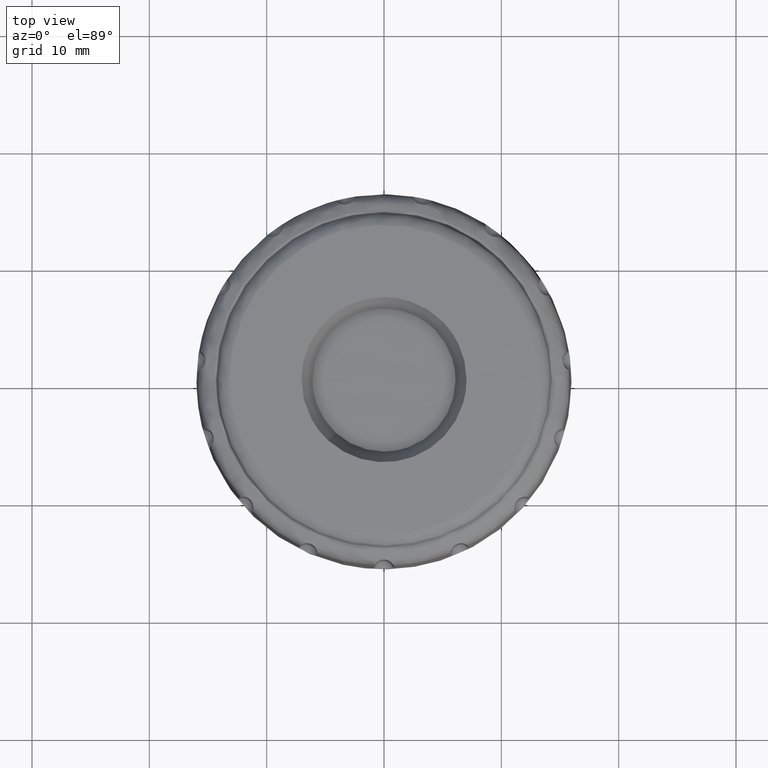
[diagram: clean part render]
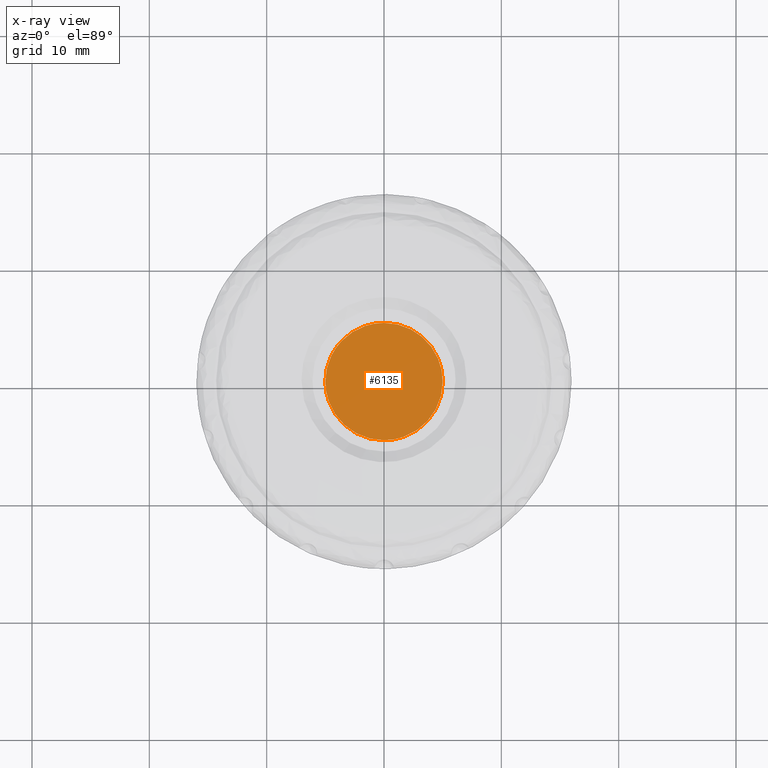
[diagram: x-ray — body ghosted, one internal face saturated and labeled with its STEP entity id]
A machine part, top view, then the same camera in x-ray: the body is ghosted and one INTERNAL B-rep face — a face not visible from any outside direction — is saturated and labeled: STEP entity #6135.
In plain terms, the highlighted face is a freeform B-spline surface patch.
Its self-contained STEP definition (entity closure, byte-faithful):
#774=CARTESIAN_POINT('',(3.228710281985366,3.817778332043557,8.000000000000082));
#775=VERTEX_POINT('',#774);
#776=CARTESIAN_POINT('',(5.0,0.0,8.0));
#777=VERTEX_POINT('',#776);
#778=CARTESIAN_POINT('',(3.228710281985366,3.817778332043557,8.000000000000082));
#779=CARTESIAN_POINT('',(3.539728782000803,3.554860782641227,8.000000000000084));
#780=CARTESIAN_POINT('',(4.019545652111504,3.036121859824177,8.000000000000021));
#781=CARTESIAN_POINT('',(4.472046225612244,2.274600815427267,8.000000000000089));
#782=CARTESIAN_POINT('',(4.763219410354973,1.573605996743177,7.999999999999933));
#783=CARTESIAN_POINT('',(4.951887044794971,0.848434915297570,8.000000000000208));
#784=CARTESIAN_POINT('',(5.000022349044431,0.282813379944158,7.999999999999936));
#785=CARTESIAN_POINT('',(5.0,0.0,8.0));
#786=B_SPLINE_CURVE_WITH_KNOTS('',3,(#778,#779,#780,#781,#782,#783,#784,#785),.UNSPECIFIED.,.F.,.U.,(4,1,1,1,1,4),(8.790038E-009,1.221755469266631,2.104137776077454,2.647132853785713,3.495577850451993,4.344016523720084),.UNSPECIFIED.);
#787=EDGE_CURVE('',#775,#777,#786,.T.);
#856=CARTESIAN_POINT('',(-3.626871746520105,3.441772775464737,7.999999999999372));
#857=VERTEX_POINT('',#856);
#863=CARTESIAN_POINT('',(-5.0,0.0,8.0));
#864=VERTEX_POINT('',#863);
#865=CARTESIAN_POINT('',(-5.0,0.0,8.0));
#866=CARTESIAN_POINT('',(-5.000110869077024,0.415212781525869,7.999999999999936));
#867=CARTESIAN_POINT('',(-4.923188867500707,1.028054158167918,7.999999999999806));
#868=CARTESIAN_POINT('',(-4.640609091061107,1.915031969057850,7.999999999999647));
#869=CARTESIAN_POINT('',(-4.259441488302971,2.679244564561157,7.999999999999545));
#870=CARTESIAN_POINT('',(-3.858271198310277,3.197994142557296,7.999999999999393));
#871=CARTESIAN_POINT('',(-3.626871746520105,3.441772775464737,7.999999999999372));
#872=B_SPLINE_CURVE_WITH_KNOTS('',3,(#865,#866,#867,#868,#869,#870,#871),.UNSPECIFIED.,.F.,.U.,(4,1,1,1,4),(1.769318E-009,1.245599826037694,1.838742561366745,2.787770716328274,3.796113323741247),.UNSPECIFIED.);
#873=EDGE_CURVE('',#864,#857,#872,.T.);
#875=CARTESIAN_POINT('',(-0.000000599366880,-4.999999999999965,8.0));
#876=VERTEX_POINT('',#875);
#877=CARTESIAN_POINT('',(-0.000000599366880,-4.999999999999965,8.0));
#878=CARTESIAN_POINT('',(-0.317023600388771,-5.000028079698827,8.000000000000004));
#879=CARTESIAN_POINT('',(-0.971516661249554,-4.937563823604807,8.0));
#880=CARTESIAN_POINT('',(-1.769004992644884,-4.698331893203535,8.000000000000021));
#881=CARTESIAN_POINT('',(-2.453033067753525,-4.372189057999847,7.999999999999993));
#882=CARTESIAN_POINT('',(-3.057110783183296,-3.984476961877405,8.000000000000057));
#883=CARTESIAN_POINT('',(-3.728455652919879,-3.379808913922216,7.999999999999933));
#884=CARTESIAN_POINT('',(-4.294465727756585,-2.621481218786049,8.000000000000101));
#885=CARTESIAN_POINT('',(-4.716778598133718,-1.742546088073101,8.000000000000005));
#886=CARTESIAN_POINT('',(-4.949923296802798,-0.879479588592300,8.000000000000012));
#887=CARTESIAN_POINT('',(-5.000014567597133,-0.276113009614491,7.999999999999917));
#888=CARTESIAN_POINT('',(-5.0,0.0,8.0));
#889=B_SPLINE_CURVE_WITH_KNOTS('',3,(#877,#878,#879,#880,#881,#882,#883,#884,#885,#886,#887,#888),.UNSPECIFIED.,.F.,.U.,(4,1,1,1,1,1,1,1,1,4),(0.000000025298453,0.951068246970020,1.963498599582898,2.485057444344970,3.221366930208466,4.111066778367768,5.184858344114467,6.043894813349988,7.025652478851227,7.853993616779547),.UNSPECIFIED.);
#890=EDGE_CURVE('',#876,#864,#889,.T.);
#892=CARTESIAN_POINT('',(5.0,0.0,8.0));
#893=CARTESIAN_POINT('',(5.000036738504976,-0.317026128788219,8.000000000000014));
#894=CARTESIAN_POINT('',(4.954123346772604,-0.797654038023379,7.999999999999975));
#895=CARTESIAN_POINT('',(4.779391596223281,-1.513850331799040,8.000000000000050));
#896=CARTESIAN_POINT('',(4.537713075931121,-2.146178164333894,7.999999999999965));
#897=CARTESIAN_POINT('',(4.136171313327477,-2.849970986290774,7.999999999999916));
#898=CARTESIAN_POINT('',(3.655987069541625,-3.438741855350819,8.000000000000343));
#899=CARTESIAN_POINT('',(3.109378036696453,-3.934137745679426,7.999999999999792));
#900=CARTESIAN_POINT('',(2.527310690011898,-4.336130367128954,8.000000000000146));
#901=CARTESIAN_POINT('',(1.900371051990909,-4.642111118974008,7.999999999999979));
#902=CARTESIAN_POINT('',(1.053273759842252,-4.919093461027559,7.999999999999816));
#903=CARTESIAN_POINT('',(0.429530451079908,-5.000144114137714,8.000000000000195));
#904=CARTESIAN_POINT('',(-0.000000599366880,-4.999999999999965,8.0));
#905=B_SPLINE_CURVE_WITH_KNOTS('',3,(#892,#893,#894,#895,#896,#897,#898,#899,#900,#901,#902,#903,#904),.UNSPECIFIED.,.F.,.U.,(4,1,1,1,1,1,1,1,1,1,4),(0.000000025231960,0.951068328790420,1.441940933797179,2.208936287577822,2.975933188002141,3.865641756773152,4.479219281187051,5.184858790321886,5.982535697744413,6.565453881150303,7.853994292406799),.UNSPECIFIED.);
#906=EDGE_CURVE('',#777,#876,#905,.T.);
#925=CARTESIAN_POINT('',(0.000000599366988,4.999999999999964,8.0));
#926=VERTEX_POINT('',#925);
#927=CARTESIAN_POINT('',(0.000000599366988,4.999999999999964,8.0));
#928=CARTESIAN_POINT('',(0.310781205340139,5.000032463905532,8.000000000000023));
#929=CARTESIAN_POINT('',(0.877484909671567,4.946990615211505,8.000000000000007));
#930=CARTESIAN_POINT('',(1.709549643495475,4.722756355982737,8.000000000000048));
#931=CARTESIAN_POINT('',(2.494351228228941,4.364935874629495,8.000000000000060));
#932=CARTESIAN_POINT('',(2.991432565459816,4.018487615261607,8.000000000000089));
#933=CARTESIAN_POINT('',(3.228710281985366,3.817778332043557,8.000000000000082));
#934=B_SPLINE_CURVE_WITH_KNOTS('',3,(#927,#928,#929,#930,#931,#932,#933),.UNSPECIFIED.,.F.,.U.,(4,1,1,1,4),(3.036558E-009,0.932341325346351,1.700153245476358,2.577649237869510,3.509990560180885),.UNSPECIFIED.);
#935=EDGE_CURVE('',#926,#775,#934,.T.);
#937=CARTESIAN_POINT('',(-3.626871746520105,3.441772775464737,7.999999999999372));
#938=CARTESIAN_POINT('',(-3.379594243483628,3.702442828888033,7.999999999999425));
#939=CARTESIAN_POINT('',(-2.925731207590671,4.087521806533188,7.999999999999488));
#940=CARTESIAN_POINT('',(-2.092205049179509,4.571786576606373,7.999999999999638));
#941=CARTESIAN_POINT('',(-1.151818026838702,4.910289485055841,7.999999999999835));
#942=CARTESIAN_POINT('',(-0.391002117413954,5.000090279248109,7.999999999999903));
#943=CARTESIAN_POINT('',(0.000000599366988,4.999999999999964,8.0));
#944=B_SPLINE_CURVE_WITH_KNOTS('',3,(#937,#938,#939,#940,#941,#942,#943),.UNSPECIFIED.,.F.,.U.,(4,1,1,1,4),(7.546170E-009,1.077879284549749,1.775335577199985,2.884910497382315,4.057897846632332),.UNSPECIFIED.);
#945=EDGE_CURVE('',#857,#926,#944,.T.);
#6122=CARTESIAN_POINT('',(-5.499499980618060,-5.499499980618021,8.0));
#6123=CARTESIAN_POINT('',(5.499500248838961,-5.499499980618021,8.0));
#6124=CARTESIAN_POINT('',(-5.499499980618060,5.499500248838920,8.0));
#6125=CARTESIAN_POINT('',(5.499500248838961,5.499500248838920,8.0));
#6126=B_SPLINE_SURFACE_WITH_KNOTS('',1,1,((#6122,#6124),(#6123,#6125)),.UNSPECIFIED.,.F.,.F.,.U.,(2,2),(2,2),(0.0,10.999000229457019),(0.0,10.999000229456939),.UNSPECIFIED.);
#6127=ORIENTED_EDGE('',*,*,#906,.T.);
#6128=ORIENTED_EDGE('',*,*,#890,.T.);
#6129=ORIENTED_EDGE('',*,*,#873,.T.);
#6130=ORIENTED_EDGE('',*,*,#945,.T.);
#6131=ORIENTED_EDGE('',*,*,#935,.T.);
#6132=ORIENTED_EDGE('',*,*,#787,.T.);
#6133=EDGE_LOOP('',(#6127,#6128,#6129,#6130,#6131,#6132));
#6134=FACE_OUTER_BOUND('',#6133,.T.);
#6135=ADVANCED_FACE('',(#6134),#6126,.F.);